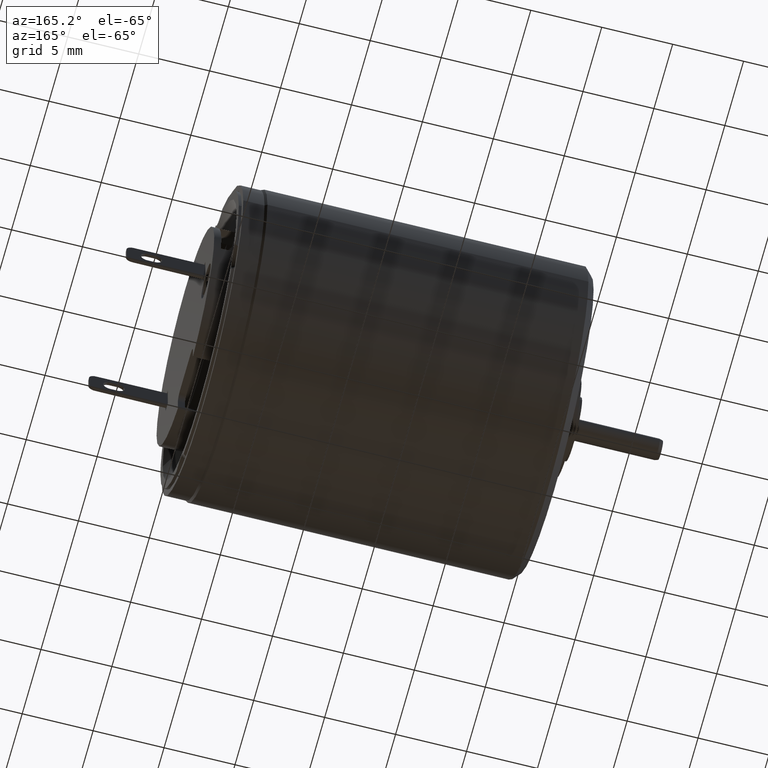
[diagram: clean part render]
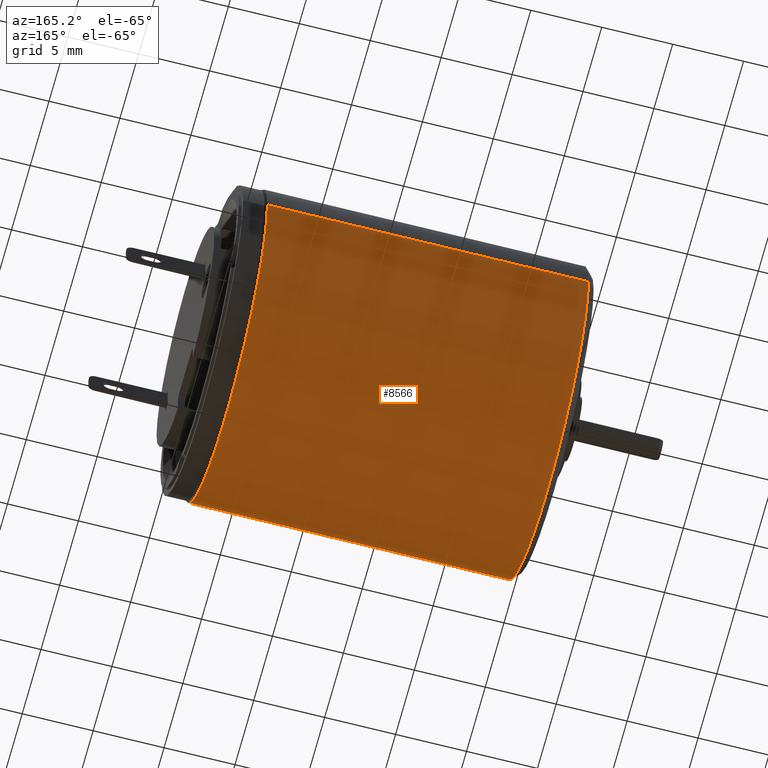
[diagram: same view with one face highlighted and labeled with its STEP entity id]
A machine part, auxiliary view. The second image highlights one B-rep face of the part: STEP entity #8566.
In plain terms, the highlighted cylindrical surface (partial cylindrical patch) has radius 11 mm, axis along (-1, 0, 0).
Its self-contained STEP definition (entity closure, byte-faithful):
#2433=CARTESIAN_POINT('',(-1.54E1,1.413242406229E-14,0.E0));
#2434=DIRECTION('',(-1.E0,0.E0,0.E0));
#2435=DIRECTION('',(0.E0,1.E0,0.E0));
#2436=AXIS2_PLACEMENT_3D('',#2433,#2434,#2435);
#2438=CARTESIAN_POINT('',(7.226794919243E0,1.136144086489E-14,0.E0));
#2439=DIRECTION('',(1.E0,0.E0,0.E0));
#2440=DIRECTION('',(0.E0,-1.E0,6.806498663983E-11));
#2441=AXIS2_PLACEMENT_3D('',#2438,#2439,#2440);
#2536=DIRECTION('',(1.E0,5.693311777165E-13,1.924549042033E-11));
#2537=VECTOR('',#2536,2.262679491926E1);
#2538=CARTESIAN_POINT('',(-1.540000000001E1,1.099999999999E1,
-4.354624177498E-10));
#2539=LINE('',#2538,#2537);
#2545=DIRECTION('',(-1.E0,5.673685081850E-13,1.097307094009E-11));
#2546=VECTOR('',#2545,2.262679491926E1);
#2547=CARTESIAN_POINT('',(7.226794919243E0,-1.1E1,1.871777029259E-10));
#2548=LINE('',#2547,#2546);
#4433=CARTESIAN_POINT('',(7.226794919243E0,1.1E1,0.E0));
#4434=VERTEX_POINT('',#4433);
#4435=CARTESIAN_POINT('',(7.226794919243E0,-1.1E1,1.871777029259E-10));
#4436=VERTEX_POINT('',#4435);
#4438=CARTESIAN_POINT('',(-1.540000000001E1,1.099999999999E1,
-4.354624177498E-10));
#4440=VERTEX_POINT('',#4438);
#4487=CARTESIAN_POINT('',(-1.540000000001E1,-1.099999999999E1,
4.354631287217E-10));
#4488=VERTEX_POINT('',#4487);
#8552=CARTESIAN_POINT('',(7.679330817628E0,1.130602120094E-14,0.E0));
#8553=DIRECTION('',(-1.E0,0.E0,0.E0));
#8554=DIRECTION('',(0.E0,1.E0,0.E0));
#8555=AXIS2_PLACEMENT_3D('',#8552,#8553,#8554);
#8556=CYLINDRICAL_SURFACE('',#8555,1.1E1);
#8558=ORIENTED_EDGE('',*,*,#8557,.T.);
#8560=ORIENTED_EDGE('',*,*,#8559,.F.);
#8561=ORIENTED_EDGE('',*,*,#8545,.T.);
#8563=ORIENTED_EDGE('',*,*,#8562,.F.);
#8564=EDGE_LOOP('',(#8558,#8560,#8561,#8563));
#8565=FACE_OUTER_BOUND('',#8564,.F.);
#8566=ADVANCED_FACE('',(#8565),#8556,.T.);
#2437=CIRCLE('',#2436,1.1E1);
#2442=CIRCLE('',#2441,1.1E1);
#8545=EDGE_CURVE('',#4436,#4434,#2442,.T.);
#8557=EDGE_CURVE('',#4440,#4488,#2437,.T.);
#8559=EDGE_CURVE('',#4436,#4488,#2548,.T.);
#8562=EDGE_CURVE('',#4440,#4434,#2539,.T.);